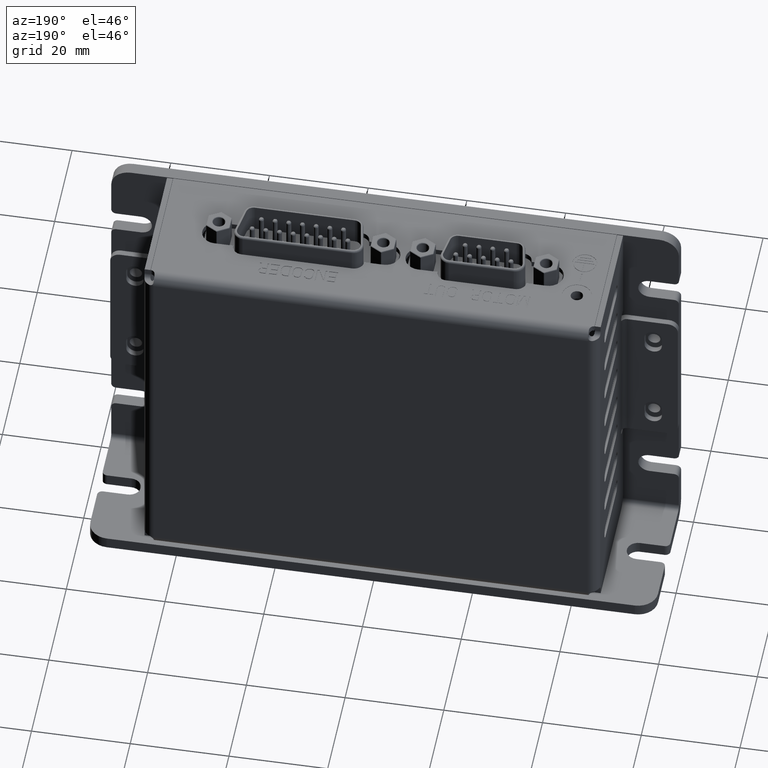
[diagram: clean part render]
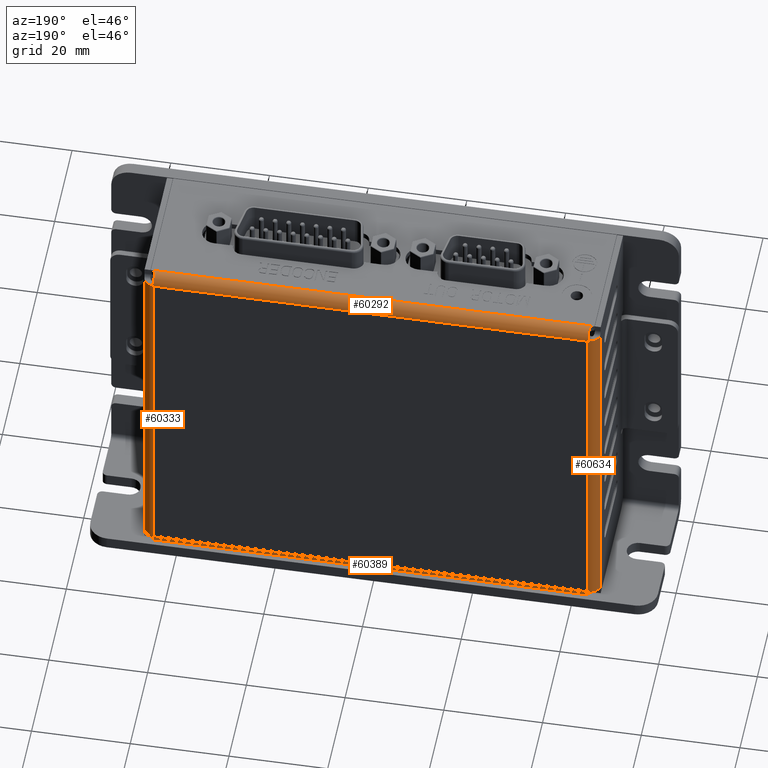
[diagram: same view with one multi-face feature highlighted, each face labeled with its STEP entity id]
A machine part, auxiliary view. The highlighted faces form ONE feature: a constant-radius fillet chain: 4 tangent blend faces with common blend radius 2.2 mm. The faces share edges in the B-rep.
Their STEP definitions:
[1] entity #60389 (Cylinder):
#50807=CARTESIAN_POINT('',(4.429289321881E1,3.629289321881E1,
-1.958408500280E-2));
#50817=CARTESIAN_POINT('',(4.429289321881E1,3.629289321881E1,
-1.958408500280E-2));
#50818=CARTESIAN_POINT('',(4.426114708571E1,3.632463935192E1,
-2.384851320025E-2));
#50819=CARTESIAN_POINT('',(4.420245057301E1,3.639192209824E1,
-3.430853054572E-2));
#50820=CARTESIAN_POINT('',(4.412997190537E1,3.650130382970E1,
-5.682870278468E-2));
#50821=CARTESIAN_POINT('',(4.407282944610E1,3.661794715526E1,
-8.733525997267E-2));
#50822=CARTESIAN_POINT('',(4.403123581322E1,3.674096645089E1,
-1.271114053402E-1));
#50823=CARTESIAN_POINT('',(4.400582953504E1,3.686842159490E1,
-1.770145892175E-1));
#50824=CARTESIAN_POINT('',(4.4E1,3.695604145619E1,-2.179757053205E-1));
#50825=CARTESIAN_POINT('',(4.4E1,3.7E1,-2.404082057735E-1));
#50842=DIRECTION('',(1.E0,0.E0,4.120792200851E-14));
#50843=VECTOR('',#50842,8.990000000011E1);
#50844=CARTESIAN_POINT('',(-4.495000000006E1,3.82E1,-2.200000000002E0));
#50845=LINE('',#50844,#50843);
#50846=CARTESIAN_POINT('',(4.4E1,3.6E1,-2.2E0));
#50847=DIRECTION('',(1.E0,0.E0,0.E0));
#50848=DIRECTION('',(0.E0,8.910134447234E-1,4.539769171689E-1));
#50849=AXIS2_PLACEMENT_3D('',#50846,#50847,#50848);
#50851=CARTESIAN_POINT('',(4.4E1,3.6E1,0.E0));
#50852=CARTESIAN_POINT('',(4.403259219789E1,3.603259219789E1,0.E0));
#50853=CARTESIAN_POINT('',(4.409777656852E1,3.609777656852E1,
-1.448284514502E-3));
#50854=CARTESIAN_POINT('',(4.419545656701E1,3.619545656701E1,
-7.969867581123E-3));
#50855=CARTESIAN_POINT('',(4.426044697523E1,3.626044697523E1,
-1.522561162353E-2));
#50856=CARTESIAN_POINT('',(4.429289321881E1,3.629289321881E1,
-1.958408500280E-2));
#50858=DIRECTION('',(1.E0,0.E0,0.E0));
#50859=VECTOR('',#50858,8.8E1);
#50860=CARTESIAN_POINT('',(-4.4E1,3.6E1,0.E0));
#50861=LINE('',#50860,#50859);
#50862=CARTESIAN_POINT('',(-4.4E1,3.7E1,-2.404082057735E-1));
#50863=CARTESIAN_POINT('',(-4.4E1,3.695590125552E1,-2.179041594664E-1));
#50864=CARTESIAN_POINT('',(-4.400582994208E1,3.686848625535E1,
-1.770477391540E-1));
#50865=CARTESIAN_POINT('',(-4.403123438856E1,3.674095044034E1,
-1.271026993436E-1));
#50866=CARTESIAN_POINT('',(-4.407283473768E1,3.661794653704E1,
-8.733693402243E-2));
#50867=CARTESIAN_POINT('',(-4.412995216373E1,3.650132231313E1,
-5.683071258222E-2));
#50868=CARTESIAN_POINT('',(-4.420252424799E1,3.639184878275E1,
-3.429881730577E-2));
#50869=CARTESIAN_POINT('',(-4.426098833851E1,3.632479809911E1,
-2.386983756175E-2));
#50870=CARTESIAN_POINT('',(-4.429289321881E1,3.629289321881E1,
-1.958408500280E-2));
#50872=CARTESIAN_POINT('',(-4.4E1,3.6E1,-2.2E0));
#50873=DIRECTION('',(1.E0,0.E0,0.E0));
#50874=DIRECTION('',(0.E0,8.910134447233E-1,4.539769171690E-1));
#50875=AXIS2_PLACEMENT_3D('',#50872,#50873,#50874);
#51005=CARTESIAN_POINT('',(-4.495000000006E1,3.82E1,-2.200000000002E0));
#51006=CARTESIAN_POINT('',(-4.490670319148E1,3.82E1,-2.197832448446E0));
#51007=CARTESIAN_POINT('',(-4.482020325185E1,3.820000461741E1,
-2.187864616724E0));
#51008=CARTESIAN_POINT('',(-4.469242169708E1,3.819967760892E1,
-2.155811977427E0));
#51009=CARTESIAN_POINT('',(-4.457052219749E1,3.819828384453E1,
-2.107426824897E0));
#51010=CARTESIAN_POINT('',(-4.445810412675E1,3.819489467703E1,
-2.044948838551E0));
#51011=CARTESIAN_POINT('',(-4.435450197289E1,3.818832840281E1,
-1.968629673401E0));
#51012=CARTESIAN_POINT('',(-4.426140613694E1,3.817722570062E1,
-1.879467657143E0));
#51013=CARTESIAN_POINT('',(-4.418158711372E1,3.816045429947E1,
-1.780406513787E0));
#51014=CARTESIAN_POINT('',(-4.411700419331E1,3.813757319855E1,
-1.675793267334E0));
#51015=CARTESIAN_POINT('',(-4.406631595747E1,3.810783623188E1,
-1.566194785963E0));
#51016=CARTESIAN_POINT('',(-4.402833744681E1,3.806895499539E1,
-1.448369603773E0));
#51017=CARTESIAN_POINT('',(-4.400513634446E1,3.802022400115E1,
-1.325489523715E0));
#51018=CARTESIAN_POINT('',(-4.4E1,3.798132628856E1,-1.242656967627E0));
#51019=CARTESIAN_POINT('',(-4.4E1,3.796022957839E1,-1.201250782228E0));
#51089=CARTESIAN_POINT('',(-4.4E1,3.6E1,0.E0));
#51090=CARTESIAN_POINT('',(-4.403259219789E1,3.603259219789E1,0.E0));
#51091=CARTESIAN_POINT('',(-4.409777656852E1,3.609777656852E1,
-1.448284514503E-3));
#51092=CARTESIAN_POINT('',(-4.419545656701E1,3.619545656701E1,
-7.969867581123E-3));
#51093=CARTESIAN_POINT('',(-4.426044697523E1,3.626044697523E1,
-1.522561162353E-2));
#51094=CARTESIAN_POINT('',(-4.429289321881E1,3.629289321881E1,
-1.958408500280E-2));
#53559=CARTESIAN_POINT('',(4.4E1,3.796022957839E1,-1.201250782228E0));
#53560=CARTESIAN_POINT('',(4.4E1,3.798132628856E1,-1.242656967631E0));
#53561=CARTESIAN_POINT('',(4.400513634446E1,3.802022400115E1,
-1.325489523726E0));
#53562=CARTESIAN_POINT('',(4.402833744681E1,3.806895499540E1,
-1.448369603794E0));
#53563=CARTESIAN_POINT('',(4.406631595749E1,3.810783623189E1,
-1.566194785992E0));
#53564=CARTESIAN_POINT('',(4.411700419333E1,3.813757319856E1,
-1.675793267371E0));
#53565=CARTESIAN_POINT('',(4.418158711376E1,3.816045429948E1,
-1.780406513830E0));
#53566=CARTESIAN_POINT('',(4.426140613699E1,3.817722570063E1,
-1.879467657191E0));
#53567=CARTESIAN_POINT('',(4.435450197296E1,3.818832840281E1,
-1.968629673449E0));
#53568=CARTESIAN_POINT('',(4.445810412683E1,3.819489467703E1,
-2.044948838597E0));
#53569=CARTESIAN_POINT('',(4.457052219759E1,3.819828384453E1,
-2.107426824938E0));
#53570=CARTESIAN_POINT('',(4.469242169719E1,3.819967760892E1,
-2.155811977457E0));
#53571=CARTESIAN_POINT('',(4.482020325198E1,3.820000461741E1,
-2.187864616746E0));
#53572=CARTESIAN_POINT('',(4.490670319163E1,3.82E1,-2.197832448443E0));
#53573=CARTESIAN_POINT('',(4.495000000006E1,3.82E1,-2.199999999998E0));
#56915=VERTEX_POINT('',#53559);
#56916=VERTEX_POINT('',#53573);
#56919=VERTEX_POINT('',#51005);
#56920=VERTEX_POINT('',#51019);
#56922=VERTEX_POINT('',#50807);
#56923=VERTEX_POINT('',#50862);
#56924=VERTEX_POINT('',#50870);
#56925=CARTESIAN_POINT('',(4.4E1,3.6E1,0.E0));
#56927=VERTEX_POINT('',#56925);
#56945=CARTESIAN_POINT('',(-4.4E1,3.6E1,0.E0));
#56946=VERTEX_POINT('',#56945);
#56955=VERTEX_POINT('',#50825);
#60365=CARTESIAN_POINT('',(-4.4E1,3.6E1,-2.2E0));
#60366=DIRECTION('',(1.E0,0.E0,0.E0));
#60367=DIRECTION('',(0.E0,1.E0,0.E0));
#60368=AXIS2_PLACEMENT_3D('',#60365,#60366,#60367);
#60369=CYLINDRICAL_SURFACE('',#60368,2.2E0);
#60371=ORIENTED_EDGE('',*,*,#60370,.T.);
#60373=ORIENTED_EDGE('',*,*,#60372,.F.);
#60375=ORIENTED_EDGE('',*,*,#60374,.T.);
#60376=ORIENTED_EDGE('',*,*,#60353,.F.);
#60377=ORIENTED_EDGE('',*,*,#60327,.F.);
#60378=ORIENTED_EDGE('',*,*,#60303,.F.);
#60380=ORIENTED_EDGE('',*,*,#60379,.T.);
#60382=ORIENTED_EDGE('',*,*,#60381,.F.);
#60384=ORIENTED_EDGE('',*,*,#60383,.F.);
#60386=ORIENTED_EDGE('',*,*,#60385,.F.);
#60387=EDGE_LOOP('',(#60371,#60373,#60375,#60376,#60377,#60378,#60380,#60382,
#60384,#60386));
#60388=FACE_OUTER_BOUND('',#60387,.F.);
#60389=ADVANCED_FACE('',(#60388),#60369,.T.);
#50826=B_SPLINE_CURVE_WITH_KNOTS('',3,(#50817,#50818,#50819,#50820,#50821,
#50822,#50823,#50824,#50825),.UNSPECIFIED.,.F.,.F.,(4,1,1,1,1,1,4),(0.E0,
1.666666666667E-1,3.333333333333E-1,5.E-1,6.666666666667E-1,8.333333333333E-1,
1.E0),.UNSPECIFIED.);
#50850=CIRCLE('',#50849,2.2E0);
#50857=B_SPLINE_CURVE_WITH_KNOTS('',3,(#50851,#50852,#50853,#50854,#50855,
#50856),.UNSPECIFIED.,.F.,.F.,(4,1,1,4),(0.E0,3.333333333333E-1,
6.666666666667E-1,1.E0),.UNSPECIFIED.);
#50871=B_SPLINE_CURVE_WITH_KNOTS('',3,(#50862,#50863,#50864,#50865,#50866,
#50867,#50868,#50869,#50870),.UNSPECIFIED.,.F.,.F.,(4,1,1,1,1,1,4),(0.E0,
1.666666666667E-1,3.333333333333E-1,5.E-1,6.666666666667E-1,8.333333333333E-1,
1.E0),.UNSPECIFIED.);
#50876=CIRCLE('',#50875,2.2E0);
#51020=B_SPLINE_CURVE_WITH_KNOTS('',3,(#51005,#51006,#51007,#51008,#51009,
#51010,#51011,#51012,#51013,#51014,#51015,#51016,#51017,#51018,#51019),
.UNSPECIFIED.,.F.,.F.,(4,1,1,1,1,1,1,1,1,1,1,1,4),(0.E0,8.333333333333E-2,
1.666666666667E-1,2.5E-1,3.333333333333E-1,4.166666666667E-1,5.E-1,
5.833333333333E-1,6.666666666667E-1,7.5E-1,8.333333333333E-1,9.166666666667E-1,
1.E0),.UNSPECIFIED.);
#51095=B_SPLINE_CURVE_WITH_KNOTS('',3,(#51089,#51090,#51091,#51092,#51093,
#51094),.UNSPECIFIED.,.F.,.F.,(4,1,1,4),(0.E0,3.333333333333E-1,
6.666666666667E-1,1.E0),.UNSPECIFIED.);
#53574=B_SPLINE_CURVE_WITH_KNOTS('',3,(#53559,#53560,#53561,#53562,#53563,
#53564,#53565,#53566,#53567,#53568,#53569,#53570,#53571,#53572,#53573),
.UNSPECIFIED.,.F.,.F.,(4,1,1,1,1,1,1,1,1,1,1,1,4),(0.E0,8.333333333333E-2,
1.666666666667E-1,2.5E-1,3.333333333333E-1,4.166666666667E-1,5.E-1,
5.833333333333E-1,6.666666666667E-1,7.5E-1,8.333333333333E-1,9.166666666667E-1,
1.E0),.UNSPECIFIED.);
#60303=EDGE_CURVE('',#56946,#56927,#50861,.T.);
#60327=EDGE_CURVE('',#56927,#56922,#50857,.T.);
#60353=EDGE_CURVE('',#56922,#56955,#50826,.T.);
#60370=EDGE_CURVE('',#56919,#56916,#50845,.T.);
#60372=EDGE_CURVE('',#56915,#56916,#53574,.T.);
#60374=EDGE_CURVE('',#56915,#56955,#50850,.T.);
#60379=EDGE_CURVE('',#56946,#56924,#51095,.T.);
#60381=EDGE_CURVE('',#56923,#56924,#50871,.T.);
#60383=EDGE_CURVE('',#56920,#56923,#50876,.T.);
#60385=EDGE_CURVE('',#56919,#56920,#51020,.T.);
[2] entity #60634 (Cylinder):
#50767=CARTESIAN_POINT('',(-4.4E1,-3.6E1,0.E0));
#50768=CARTESIAN_POINT('',(-4.403259219789E1,-3.603259219789E1,0.E0));
#50769=CARTESIAN_POINT('',(-4.409777656852E1,-3.609777656852E1,
-1.448284514502E-3));
#50770=CARTESIAN_POINT('',(-4.419545656701E1,-3.619545656701E1,
-7.969867581123E-3));
#50771=CARTESIAN_POINT('',(-4.426044697523E1,-3.626044697523E1,
-1.522561162353E-2));
#50772=CARTESIAN_POINT('',(-4.429289321881E1,-3.629289321881E1,
-1.958408500280E-2));
#50870=CARTESIAN_POINT('',(-4.429289321881E1,3.629289321881E1,
-1.958408500280E-2));
#51050=CARTESIAN_POINT('',(-4.429289321881E1,3.629289321881E1,
-1.958408500280E-2));
#51051=CARTESIAN_POINT('',(-4.432463935192E1,3.626114708571E1,
-2.384851320025E-2));
#51052=CARTESIAN_POINT('',(-4.439192209824E1,3.620245057301E1,
-3.430853054571E-2));
#51053=CARTESIAN_POINT('',(-4.450130382970E1,3.612997190537E1,
-5.682870278468E-2));
#51054=CARTESIAN_POINT('',(-4.461794715526E1,3.607282944610E1,
-8.733525997267E-2));
#51055=CARTESIAN_POINT('',(-4.474096645089E1,3.603123581322E1,
-1.271114053402E-1));
#51056=CARTESIAN_POINT('',(-4.486842159490E1,3.600582953504E1,
-1.770145892175E-1));
#51057=CARTESIAN_POINT('',(-4.495604145619E1,3.6E1,-2.179757053205E-1));
#51058=CARTESIAN_POINT('',(-4.5E1,3.6E1,-2.404082057735E-1));
#51075=CARTESIAN_POINT('',(-4.4E1,-3.6E1,-2.2E0));
#51076=DIRECTION('',(0.E0,1.E0,0.E0));
#51077=DIRECTION('',(-8.907235428302E-1,0.E0,4.545454545455E-1));
#51078=AXIS2_PLACEMENT_3D('',#51075,#51076,#51077);
#51080=DIRECTION('',(0.E0,1.E0,0.E0));
#51081=VECTOR('',#51080,7.399971800832E1);
#51082=CARTESIAN_POINT('',(-4.620000001314E1,-3.699985900416E1,
-2.199999973494E0));
#51083=LINE('',#51082,#51081);
#51084=CARTESIAN_POINT('',(-4.4E1,3.6E1,-2.2E0));
#51085=DIRECTION('',(0.E0,1.E0,0.E0));
#51086=DIRECTION('',(-8.907235428302E-1,0.E0,4.545454545455E-1));
#51087=AXIS2_PLACEMENT_3D('',#51084,#51085,#51086);
#51089=CARTESIAN_POINT('',(-4.4E1,3.6E1,0.E0));
#51090=CARTESIAN_POINT('',(-4.403259219789E1,3.603259219789E1,0.E0));
#51091=CARTESIAN_POINT('',(-4.409777656852E1,3.609777656852E1,
-1.448284514503E-3));
#51092=CARTESIAN_POINT('',(-4.419545656701E1,3.619545656701E1,
-7.969867581123E-3));
#51093=CARTESIAN_POINT('',(-4.426044697523E1,3.626044697523E1,
-1.522561162353E-2));
#51094=CARTESIAN_POINT('',(-4.429289321881E1,3.629289321881E1,
-1.958408500280E-2));
#51096=DIRECTION('',(0.E0,1.E0,0.E0));
#51097=VECTOR('',#51096,7.2E1);
#51098=CARTESIAN_POINT('',(-4.4E1,-3.6E1,0.E0));
#51099=LINE('',#51098,#51097);
#51100=CARTESIAN_POINT('',(-4.5E1,-3.6E1,-2.404082057735E-1));
#51101=CARTESIAN_POINT('',(-4.495590125552E1,-3.6E1,-2.179041594664E-1));
#51102=CARTESIAN_POINT('',(-4.486848625535E1,-3.600582994208E1,
-1.770477391539E-1));
#51103=CARTESIAN_POINT('',(-4.474095044034E1,-3.603123438856E1,
-1.271026993436E-1));
#51104=CARTESIAN_POINT('',(-4.461794653704E1,-3.607283473768E1,
-8.733693402243E-2));
#51105=CARTESIAN_POINT('',(-4.450132231313E1,-3.612995216373E1,
-5.683071258222E-2));
#51106=CARTESIAN_POINT('',(-4.439184878275E1,-3.620252424799E1,
-3.429881730577E-2));
#51107=CARTESIAN_POINT('',(-4.432479809911E1,-3.626098833851E1,
-2.386983756175E-2));
#51108=CARTESIAN_POINT('',(-4.429289321881E1,-3.629289321881E1,
-1.958408500280E-2));
#51608=CARTESIAN_POINT('',(-4.595959179423E1,3.6E1,-1.2E0));
#51609=CARTESIAN_POINT('',(-4.598138620585E1,3.6E1,-1.242708150179E0));
#51610=CARTESIAN_POINT('',(-4.602146028425E1,3.600546442209E1,
-1.328136489802E0));
#51611=CARTESIAN_POINT('',(-4.607132776378E1,3.603013464886E1,
-1.454724652471E0));
#51612=CARTESIAN_POINT('',(-4.611074267180E1,3.607045590968E1,
-1.575762003151E0));
#51613=CARTESIAN_POINT('',(-4.614056516052E1,3.612417370332E1,
-1.687972818528E0));
#51614=CARTESIAN_POINT('',(-4.616326416173E1,3.619278596704E1,
-1.794971657142E0));
#51615=CARTESIAN_POINT('',(-4.617955757444E1,3.627751024410E1,
-1.895623217646E0));
#51616=CARTESIAN_POINT('',(-4.619002992500E1,3.637618072055E1,
-1.985350052828E0));
#51617=CARTESIAN_POINT('',(-4.619595287857E1,3.648562868260E1,
-2.060970240959E0));
#51618=CARTESIAN_POINT('',(-4.619880846606E1,3.660393678349E1,
-2.121478413658E0));
#51619=CARTESIAN_POINT('',(-4.619984370909E1,3.673183397500E1,
-2.166581812049E0));
#51620=CARTESIAN_POINT('',(-4.620001239579E1,3.686520180145E1,
-2.193950639007E0));
#51621=CARTESIAN_POINT('',(-4.620000001314E1,3.695495025013E1,
-2.199999973494E0));
#51622=CARTESIAN_POINT('',(-4.620000001314E1,3.699985900416E1,
-2.199999973494E0));
#51881=CARTESIAN_POINT('',(-4.620000001314E1,-3.699985900416E1,
-2.199999973494E0));
#51882=CARTESIAN_POINT('',(-4.620000001314E1,-3.695495025013E1,
-2.199999973494E0));
#51883=CARTESIAN_POINT('',(-4.620001239579E1,-3.686520180145E1,
-2.193950639007E0));
#51884=CARTESIAN_POINT('',(-4.619984370909E1,-3.673183397500E1,
-2.166581812049E0));
#51885=CARTESIAN_POINT('',(-4.619880846606E1,-3.660393678350E1,
-2.121478413658E0));
#51886=CARTESIAN_POINT('',(-4.619595287857E1,-3.648562868260E1,
-2.060970240959E0));
#51887=CARTESIAN_POINT('',(-4.619002992500E1,-3.637618072055E1,
-1.985350052829E0));
#51888=CARTESIAN_POINT('',(-4.617955757444E1,-3.627751024410E1,
-1.895623217646E0));
#51889=CARTESIAN_POINT('',(-4.616326416173E1,-3.619278596704E1,
-1.794971657142E0));
#51890=CARTESIAN_POINT('',(-4.614056516052E1,-3.612417370332E1,
-1.687972818528E0));
#51891=CARTESIAN_POINT('',(-4.611074267180E1,-3.607045590968E1,
-1.575762003151E0));
#51892=CARTESIAN_POINT('',(-4.607132776378E1,-3.603013464886E1,
-1.454724652471E0));
#51893=CARTESIAN_POINT('',(-4.602146028425E1,-3.600546442209E1,
-1.328136489802E0));
#51894=CARTESIAN_POINT('',(-4.598138620585E1,-3.6E1,-1.242708150179E0));
#51895=CARTESIAN_POINT('',(-4.595959179423E1,-3.6E1,-1.2E0));
#56917=VERTEX_POINT('',#51608);
#56918=VERTEX_POINT('',#51622);
#56924=VERTEX_POINT('',#50870);
#56937=CARTESIAN_POINT('',(-4.4E1,-3.6E1,0.E0));
#56938=VERTEX_POINT('',#56937);
#56945=CARTESIAN_POINT('',(-4.4E1,3.6E1,0.E0));
#56946=VERTEX_POINT('',#56945);
#56954=VERTEX_POINT('',#50772);
#56958=VERTEX_POINT('',#51058);
#56959=VERTEX_POINT('',#51881);
#56960=VERTEX_POINT('',#51895);
#58183=CARTESIAN_POINT('',(-4.5E1,-3.6E1,-2.404082057735E-1));
#58185=VERTEX_POINT('',#58183);
#60611=CARTESIAN_POINT('',(-4.4E1,-3.6E1,-2.2E0));
#60612=DIRECTION('',(0.E0,1.E0,0.E0));
#60613=DIRECTION('',(-1.E0,0.E0,0.E0));
#60614=AXIS2_PLACEMENT_3D('',#60611,#60612,#60613);
#60615=CYLINDRICAL_SURFACE('',#60614,2.2E0);
#60617=ORIENTED_EDGE('',*,*,#60616,.F.);
#60619=ORIENTED_EDGE('',*,*,#60618,.F.);
#60621=ORIENTED_EDGE('',*,*,#60620,.T.);
#60623=ORIENTED_EDGE('',*,*,#60622,.F.);
#60625=ORIENTED_EDGE('',*,*,#60624,.T.);
#60626=ORIENTED_EDGE('',*,*,#60600,.F.);
#60627=ORIENTED_EDGE('',*,*,#60379,.F.);
#60628=ORIENTED_EDGE('',*,*,#60301,.F.);
#60629=ORIENTED_EDGE('',*,*,#60288,.T.);
#60631=ORIENTED_EDGE('',*,*,#60630,.F.);
#60632=EDGE_LOOP('',(#60617,#60619,#60621,#60623,#60625,#60626,#60627,#60628,
#60629,#60631));
#60633=FACE_OUTER_BOUND('',#60632,.F.);
#60634=ADVANCED_FACE('',(#60633),#60615,.T.);
#50773=B_SPLINE_CURVE_WITH_KNOTS('',3,(#50767,#50768,#50769,#50770,#50771,
#50772),.UNSPECIFIED.,.F.,.F.,(4,1,1,4),(0.E0,3.333333333333E-1,
6.666666666667E-1,1.E0),.UNSPECIFIED.);
#51059=B_SPLINE_CURVE_WITH_KNOTS('',3,(#51050,#51051,#51052,#51053,#51054,
#51055,#51056,#51057,#51058),.UNSPECIFIED.,.F.,.F.,(4,1,1,1,1,1,4),(0.E0,
1.666666666667E-1,3.333333333333E-1,5.E-1,6.666666666667E-1,8.333333333333E-1,
1.E0),.UNSPECIFIED.);
#51079=CIRCLE('',#51078,2.2E0);
#51088=CIRCLE('',#51087,2.2E0);
#51095=B_SPLINE_CURVE_WITH_KNOTS('',3,(#51089,#51090,#51091,#51092,#51093,
#51094),.UNSPECIFIED.,.F.,.F.,(4,1,1,4),(0.E0,3.333333333333E-1,
6.666666666667E-1,1.E0),.UNSPECIFIED.);
#51109=B_SPLINE_CURVE_WITH_KNOTS('',3,(#51100,#51101,#51102,#51103,#51104,
#51105,#51106,#51107,#51108),.UNSPECIFIED.,.F.,.F.,(4,1,1,1,1,1,4),(0.E0,
1.666666666667E-1,3.333333333333E-1,5.E-1,6.666666666667E-1,8.333333333333E-1,
1.E0),.UNSPECIFIED.);
#51623=B_SPLINE_CURVE_WITH_KNOTS('',3,(#51608,#51609,#51610,#51611,#51612,
#51613,#51614,#51615,#51616,#51617,#51618,#51619,#51620,#51621,#51622),
.UNSPECIFIED.,.F.,.F.,(4,1,1,1,1,1,1,1,1,1,1,1,4),(0.E0,8.333333333333E-2,
1.666666666667E-1,2.5E-1,3.333333333333E-1,4.166666666667E-1,5.E-1,
5.833333333333E-1,6.666666666667E-1,7.5E-1,8.333333333333E-1,9.166666666667E-1,
1.E0),.UNSPECIFIED.);
#51896=B_SPLINE_CURVE_WITH_KNOTS('',3,(#51881,#51882,#51883,#51884,#51885,
#51886,#51887,#51888,#51889,#51890,#51891,#51892,#51893,#51894,#51895),
.UNSPECIFIED.,.F.,.F.,(4,1,1,1,1,1,1,1,1,1,1,1,4),(0.E0,8.333333333333E-2,
1.666666666667E-1,2.5E-1,3.333333333333E-1,4.166666666667E-1,5.E-1,
5.833333333333E-1,6.666666666667E-1,7.5E-1,8.333333333333E-1,9.166666666667E-1,
1.E0),.UNSPECIFIED.);
#60288=EDGE_CURVE('',#56938,#56954,#50773,.T.);
#60301=EDGE_CURVE('',#56938,#56946,#51099,.T.);
#60379=EDGE_CURVE('',#56946,#56924,#51095,.T.);
#60600=EDGE_CURVE('',#56924,#56958,#51059,.T.);
#60616=EDGE_CURVE('',#56960,#58185,#51079,.T.);
#60618=EDGE_CURVE('',#56959,#56960,#51896,.T.);
#60620=EDGE_CURVE('',#56959,#56918,#51083,.T.);
#60622=EDGE_CURVE('',#56917,#56918,#51623,.T.);
#60624=EDGE_CURVE('',#56917,#56958,#51088,.T.);
#60630=EDGE_CURVE('',#58185,#56954,#51109,.T.);
[3] entity #60292 (Cylinder):
#50739=DIRECTION('',(-1.E0,0.E0,0.E0));
#50740=VECTOR('',#50739,8.8E1);
#50741=CARTESIAN_POINT('',(4.4E1,-3.6E1,0.E0));
#50742=LINE('',#50741,#50740);
#50743=CARTESIAN_POINT('',(4.4E1,-3.7E1,-2.404082057735E-1));
#50744=CARTESIAN_POINT('',(4.4E1,-3.695590125552E1,-2.179041594664E-1));
#50745=CARTESIAN_POINT('',(4.400582994208E1,-3.686848625535E1,
-1.770477391539E-1));
#50746=CARTESIAN_POINT('',(4.403123438856E1,-3.674095044034E1,
-1.271026993436E-1));
#50747=CARTESIAN_POINT('',(4.407283473768E1,-3.661794653704E1,
-8.733693402243E-2));
#50748=CARTESIAN_POINT('',(4.412995216373E1,-3.650132231313E1,
-5.683071258222E-2));
#50749=CARTESIAN_POINT('',(4.420252424799E1,-3.639184878275E1,
-3.429881730577E-2));
#50750=CARTESIAN_POINT('',(4.426098833851E1,-3.632479809911E1,
-2.386983756175E-2));
#50751=CARTESIAN_POINT('',(4.429289321881E1,-3.629289321881E1,
-1.958408500280E-2));
#50753=CARTESIAN_POINT('',(4.4E1,-3.6E1,-2.2E0));
#50754=DIRECTION('',(-1.E0,0.E0,0.E0));
#50755=DIRECTION('',(0.E0,-8.910134447233E-1,4.539769171690E-1));
#50756=AXIS2_PLACEMENT_3D('',#50753,#50754,#50755);
#50758=DIRECTION('',(-1.E0,0.E0,-9.380705333776E-14));
#50759=VECTOR('',#50758,8.989999999987E1);
#50760=CARTESIAN_POINT('',(4.494999999993E1,-3.82E1,-2.199999999996E0));
#50761=LINE('',#50760,#50759);
#50762=CARTESIAN_POINT('',(-4.4E1,-3.6E1,-2.2E0));
#50763=DIRECTION('',(-1.E0,0.E0,0.E0));
#50764=DIRECTION('',(0.E0,-8.910134447232E-1,4.539769171692E-1));
#50765=AXIS2_PLACEMENT_3D('',#50762,#50763,#50764);
#50767=CARTESIAN_POINT('',(-4.4E1,-3.6E1,0.E0));
#50768=CARTESIAN_POINT('',(-4.403259219789E1,-3.603259219789E1,0.E0));
#50769=CARTESIAN_POINT('',(-4.409777656852E1,-3.609777656852E1,
-1.448284514502E-3));
#50770=CARTESIAN_POINT('',(-4.419545656701E1,-3.619545656701E1,
-7.969867581123E-3));
#50771=CARTESIAN_POINT('',(-4.426044697523E1,-3.626044697523E1,
-1.522561162353E-2));
#50772=CARTESIAN_POINT('',(-4.429289321881E1,-3.629289321881E1,
-1.958408500280E-2));
#50788=CARTESIAN_POINT('',(4.4E1,-3.6E1,0.E0));
#50789=CARTESIAN_POINT('',(4.403259219789E1,-3.603259219789E1,0.E0));
#50790=CARTESIAN_POINT('',(4.409777656852E1,-3.609777656852E1,
-1.448284514502E-3));
#50791=CARTESIAN_POINT('',(4.419545656701E1,-3.619545656701E1,
-7.969867581124E-3));
#50792=CARTESIAN_POINT('',(4.426044697523E1,-3.626044697523E1,
-1.522561162353E-2));
#50793=CARTESIAN_POINT('',(4.429289321881E1,-3.629289321881E1,
-1.958408500280E-2));
#51118=CARTESIAN_POINT('',(-4.429289321881E1,-3.629289321881E1,
-1.958408500280E-2));
#51119=CARTESIAN_POINT('',(-4.426114708571E1,-3.632463935192E1,
-2.384851320025E-2));
#51120=CARTESIAN_POINT('',(-4.420245057301E1,-3.639192209824E1,
-3.430853054572E-2));
#51121=CARTESIAN_POINT('',(-4.412997190537E1,-3.650130382970E1,
-5.682870278467E-2));
#51122=CARTESIAN_POINT('',(-4.407282944610E1,-3.661794715526E1,
-8.733525997267E-2));
#51123=CARTESIAN_POINT('',(-4.403123581322E1,-3.674096645089E1,
-1.271114053402E-1));
#51124=CARTESIAN_POINT('',(-4.400582953504E1,-3.686842159490E1,
-1.770145892175E-1));
#51125=CARTESIAN_POINT('',(-4.4E1,-3.695604145619E1,-2.179757053204E-1));
#51126=CARTESIAN_POINT('',(-4.4E1,-3.7E1,-2.404082057735E-1));
#51151=CARTESIAN_POINT('',(-4.4E1,-3.796022957839E1,-1.201250782228E0));
#51152=CARTESIAN_POINT('',(-4.4E1,-3.798132628855E1,-1.242656967619E0));
#51153=CARTESIAN_POINT('',(-4.400513634446E1,-3.802022400114E1,
-1.325489523690E0));
#51154=CARTESIAN_POINT('',(-4.402833744679E1,-3.806895499537E1,
-1.448369603724E0));
#51155=CARTESIAN_POINT('',(-4.406631595744E1,-3.810783623186E1,
-1.566194785894E0));
#51156=CARTESIAN_POINT('',(-4.411700419326E1,-3.813757319853E1,
-1.675793267251E0));
#51157=CARTESIAN_POINT('',(-4.418158711364E1,-3.816045429945E1,
-1.780406513687E0));
#51158=CARTESIAN_POINT('',(-4.426140613683E1,-3.817722570060E1,
-1.879467657033E0));
#51159=CARTESIAN_POINT('',(-4.435450197274E1,-3.818832840279E1,
-1.968629673290E0));
#51160=CARTESIAN_POINT('',(-4.445810412656E1,-3.819489467702E1,
-2.044948838447E0));
#51161=CARTESIAN_POINT('',(-4.457052219726E1,-3.819828384452E1,
-2.107426824806E0));
#51162=CARTESIAN_POINT('',(-4.469242169682E1,-3.819967760891E1,
-2.155811977357E0));
#51163=CARTESIAN_POINT('',(-4.482020325148E1,-3.820000461741E1,
-2.187864616681E0));
#51164=CARTESIAN_POINT('',(-4.490670319128E1,-3.82E1,-2.197832448438E0));
#51165=CARTESIAN_POINT('',(-4.494999999993E1,-3.82E1,-2.200000000004E0));
#51203=CARTESIAN_POINT('',(4.494999999993E1,-3.82E1,-2.199999999996E0));
#51204=CARTESIAN_POINT('',(4.490670319160E1,-3.82E1,-2.197832448431E0));
#51205=CARTESIAN_POINT('',(4.482020325179E1,-3.820000461741E1,
-2.187864616731E0));
#51206=CARTESIAN_POINT('',(4.469242169709E1,-3.819967760892E1,
-2.155811977425E0));
#51207=CARTESIAN_POINT('',(4.457052219749E1,-3.819828384453E1,
-2.107426824898E0));
#51208=CARTESIAN_POINT('',(4.445810412675E1,-3.819489467703E1,
-2.044948838551E0));
#51209=CARTESIAN_POINT('',(4.435450197289E1,-3.818832840281E1,
-1.968629673401E0));
#51210=CARTESIAN_POINT('',(4.426140613694E1,-3.817722570062E1,
-1.879467657142E0));
#51211=CARTESIAN_POINT('',(4.418158711372E1,-3.816045429947E1,
-1.780406513786E0));
#51212=CARTESIAN_POINT('',(4.411700419331E1,-3.813757319855E1,
-1.675793267334E0));
#51213=CARTESIAN_POINT('',(4.406631595747E1,-3.810783623188E1,
-1.566194785963E0));
#51214=CARTESIAN_POINT('',(4.402833744681E1,-3.806895499539E1,
-1.448369603774E0));
#51215=CARTESIAN_POINT('',(4.400513634446E1,-3.802022400115E1,
-1.325489523715E0));
#51216=CARTESIAN_POINT('',(4.4E1,-3.798132628856E1,-1.242656967627E0));
#51217=CARTESIAN_POINT('',(4.4E1,-3.796022957839E1,-1.201250782228E0));
#56926=CARTESIAN_POINT('',(4.4E1,-3.6E1,0.E0));
#56928=VERTEX_POINT('',#56926);
#56933=CARTESIAN_POINT('',(4.494999999993E1,-3.82E1,-2.199999999996E0));
#56934=VERTEX_POINT('',#56933);
#56937=CARTESIAN_POINT('',(-4.4E1,-3.6E1,0.E0));
#56938=VERTEX_POINT('',#56937);
#56941=CARTESIAN_POINT('',(-4.494999999993E1,-3.82E1,-2.200000000004E0));
#56942=VERTEX_POINT('',#56941);
#56953=VERTEX_POINT('',#50793);
#56954=VERTEX_POINT('',#50772);
#56956=VERTEX_POINT('',#50743);
#56961=VERTEX_POINT('',#51151);
#56964=VERTEX_POINT('',#51217);
#57026=VERTEX_POINT('',#51126);
#60266=CARTESIAN_POINT('',(4.4E1,-3.6E1,-2.2E0));
#60267=DIRECTION('',(-1.E0,0.E0,0.E0));
#60268=DIRECTION('',(0.E0,-1.E0,0.E0));
#60269=AXIS2_PLACEMENT_3D('',#60266,#60267,#60268);
#60270=CYLINDRICAL_SURFACE('',#60269,2.2E0);
#60272=ORIENTED_EDGE('',*,*,#60271,.F.);
#60274=ORIENTED_EDGE('',*,*,#60273,.T.);
#60276=ORIENTED_EDGE('',*,*,#60275,.F.);
#60278=ORIENTED_EDGE('',*,*,#60277,.F.);
#60280=ORIENTED_EDGE('',*,*,#60279,.F.);
#60281=ORIENTED_EDGE('',*,*,#59272,.T.);
#60283=ORIENTED_EDGE('',*,*,#60282,.F.);
#60285=ORIENTED_EDGE('',*,*,#60284,.T.);
#60287=ORIENTED_EDGE('',*,*,#60286,.F.);
#60289=ORIENTED_EDGE('',*,*,#60288,.F.);
#60290=EDGE_LOOP('',(#60272,#60274,#60276,#60278,#60280,#60281,#60283,#60285,
#60287,#60289));
#60291=FACE_OUTER_BOUND('',#60290,.F.);
#60292=ADVANCED_FACE('',(#60291),#60270,.T.);
#50752=B_SPLINE_CURVE_WITH_KNOTS('',3,(#50743,#50744,#50745,#50746,#50747,
#50748,#50749,#50750,#50751),.UNSPECIFIED.,.F.,.F.,(4,1,1,1,1,1,4),(0.E0,
1.666666666667E-1,3.333333333333E-1,5.E-1,6.666666666667E-1,8.333333333333E-1,
1.E0),.UNSPECIFIED.);
#50757=CIRCLE('',#50756,2.2E0);
#50766=CIRCLE('',#50765,2.2E0);
#50773=B_SPLINE_CURVE_WITH_KNOTS('',3,(#50767,#50768,#50769,#50770,#50771,
#50772),.UNSPECIFIED.,.F.,.F.,(4,1,1,4),(0.E0,3.333333333333E-1,
6.666666666667E-1,1.E0),.UNSPECIFIED.);
#50794=B_SPLINE_CURVE_WITH_KNOTS('',3,(#50788,#50789,#50790,#50791,#50792,
#50793),.UNSPECIFIED.,.F.,.F.,(4,1,1,4),(0.E0,3.333333333333E-1,
6.666666666667E-1,1.E0),.UNSPECIFIED.);
#51127=B_SPLINE_CURVE_WITH_KNOTS('',3,(#51118,#51119,#51120,#51121,#51122,
#51123,#51124,#51125,#51126),.UNSPECIFIED.,.F.,.F.,(4,1,1,1,1,1,4),(0.E0,
1.666666666667E-1,3.333333333333E-1,5.E-1,6.666666666667E-1,8.333333333333E-1,
1.E0),.UNSPECIFIED.);
#51166=B_SPLINE_CURVE_WITH_KNOTS('',3,(#51151,#51152,#51153,#51154,#51155,
#51156,#51157,#51158,#51159,#51160,#51161,#51162,#51163,#51164,#51165),
.UNSPECIFIED.,.F.,.F.,(4,1,1,1,1,1,1,1,1,1,1,1,4),(0.E0,8.333333333333E-2,
1.666666666667E-1,2.5E-1,3.333333333333E-1,4.166666666667E-1,5.E-1,
5.833333333333E-1,6.666666666667E-1,7.5E-1,8.333333333333E-1,9.166666666667E-1,
1.E0),.UNSPECIFIED.);
#51218=B_SPLINE_CURVE_WITH_KNOTS('',3,(#51203,#51204,#51205,#51206,#51207,
#51208,#51209,#51210,#51211,#51212,#51213,#51214,#51215,#51216,#51217),
.UNSPECIFIED.,.F.,.F.,(4,1,1,1,1,1,1,1,1,1,1,1,4),(0.E0,8.333333333333E-2,
1.666666666667E-1,2.5E-1,3.333333333333E-1,4.166666666667E-1,5.E-1,
5.833333333333E-1,6.666666666667E-1,7.5E-1,8.333333333333E-1,9.166666666667E-1,
1.E0),.UNSPECIFIED.);
#59272=EDGE_CURVE('',#56934,#56942,#50761,.T.);
#60271=EDGE_CURVE('',#56928,#56938,#50742,.T.);
#60273=EDGE_CURVE('',#56928,#56953,#50794,.T.);
#60275=EDGE_CURVE('',#56956,#56953,#50752,.T.);
#60277=EDGE_CURVE('',#56964,#56956,#50757,.T.);
#60279=EDGE_CURVE('',#56934,#56964,#51218,.T.);
#60282=EDGE_CURVE('',#56961,#56942,#51166,.T.);
#60284=EDGE_CURVE('',#56961,#57026,#50766,.T.);
#60286=EDGE_CURVE('',#56954,#57026,#51127,.T.);
#60288=EDGE_CURVE('',#56938,#56954,#50773,.T.);
[4] entity #60333 (Cylinder):
#50774=CARTESIAN_POINT('',(4.4E1,3.6E1,-2.2E0));
#50775=DIRECTION('',(0.E0,-1.E0,0.E0));
#50776=DIRECTION('',(8.907235428302E-1,0.E0,4.545454545455E-1));
#50777=AXIS2_PLACEMENT_3D('',#50774,#50775,#50776);
#50779=DIRECTION('',(0.E0,-1.E0,0.E0));
#50780=VECTOR('',#50779,7.399971800832E1);
#50781=CARTESIAN_POINT('',(4.620000001314E1,3.699985900416E1,
-2.199999973494E0));
#50782=LINE('',#50781,#50780);
#50783=CARTESIAN_POINT('',(4.4E1,-3.6E1,-2.2E0));
#50784=DIRECTION('',(0.E0,-1.E0,0.E0));
#50785=DIRECTION('',(8.907235428302E-1,0.E0,4.545454545455E-1));
#50786=AXIS2_PLACEMENT_3D('',#50783,#50784,#50785);
#50788=CARTESIAN_POINT('',(4.4E1,-3.6E1,0.E0));
#50789=CARTESIAN_POINT('',(4.403259219789E1,-3.603259219789E1,0.E0));
#50790=CARTESIAN_POINT('',(4.409777656852E1,-3.609777656852E1,
-1.448284514502E-3));
#50791=CARTESIAN_POINT('',(4.419545656701E1,-3.619545656701E1,
-7.969867581124E-3));
#50792=CARTESIAN_POINT('',(4.426044697523E1,-3.626044697523E1,
-1.522561162353E-2));
#50793=CARTESIAN_POINT('',(4.429289321881E1,-3.629289321881E1,
-1.958408500280E-2));
#50795=DIRECTION('',(0.E0,-1.E0,0.E0));
#50796=VECTOR('',#50795,7.2E1);
#50797=CARTESIAN_POINT('',(4.4E1,3.6E1,0.E0));
#50798=LINE('',#50797,#50796);
#50799=CARTESIAN_POINT('',(4.5E1,3.6E1,-2.404082057735E-1));
#50800=CARTESIAN_POINT('',(4.495590125552E1,3.6E1,-2.179041594664E-1));
#50801=CARTESIAN_POINT('',(4.486848625535E1,3.600582994208E1,
-1.770477391539E-1));
#50802=CARTESIAN_POINT('',(4.474095044034E1,3.603123438856E1,
-1.271026993436E-1));
#50803=CARTESIAN_POINT('',(4.461794653704E1,3.607283473768E1,
-8.733693402243E-2));
#50804=CARTESIAN_POINT('',(4.450132231313E1,3.612995216373E1,
-5.683071258222E-2));
#50805=CARTESIAN_POINT('',(4.439184878275E1,3.620252424799E1,
-3.429881730577E-2));
#50806=CARTESIAN_POINT('',(4.432479809911E1,3.626098833851E1,
-2.386983756175E-2));
#50807=CARTESIAN_POINT('',(4.429289321881E1,3.629289321881E1,
-1.958408500280E-2));
#50851=CARTESIAN_POINT('',(4.4E1,3.6E1,0.E0));
#50852=CARTESIAN_POINT('',(4.403259219789E1,3.603259219789E1,0.E0));
#50853=CARTESIAN_POINT('',(4.409777656852E1,3.609777656852E1,
-1.448284514502E-3));
#50854=CARTESIAN_POINT('',(4.419545656701E1,3.619545656701E1,
-7.969867581123E-3));
#50855=CARTESIAN_POINT('',(4.426044697523E1,3.626044697523E1,
-1.522561162353E-2));
#50856=CARTESIAN_POINT('',(4.429289321881E1,3.629289321881E1,
-1.958408500280E-2));
#51242=CARTESIAN_POINT('',(4.429289321881E1,-3.629289321881E1,
-1.958408500280E-2));
#51243=CARTESIAN_POINT('',(4.432463935192E1,-3.626114708571E1,
-2.384851320025E-2));
#51244=CARTESIAN_POINT('',(4.439192209824E1,-3.620245057301E1,
-3.430853054571E-2));
#51245=CARTESIAN_POINT('',(4.450130382970E1,-3.612997190537E1,
-5.682870278468E-2));
#51246=CARTESIAN_POINT('',(4.461794715526E1,-3.607282944610E1,
-8.733525997267E-2));
#51247=CARTESIAN_POINT('',(4.474096645089E1,-3.603123581322E1,
-1.271114053402E-1));
#51248=CARTESIAN_POINT('',(4.486842159490E1,-3.600582953504E1,
-1.770145892175E-1));
#51249=CARTESIAN_POINT('',(4.495604145619E1,-3.6E1,-2.179757053204E-1));
#51250=CARTESIAN_POINT('',(4.5E1,-3.6E1,-2.404082057735E-1));
#51281=CARTESIAN_POINT('',(4.595959179423E1,-3.6E1,-1.2E0));
#51282=CARTESIAN_POINT('',(4.598138620585E1,-3.6E1,-1.242708150179E0));
#51283=CARTESIAN_POINT('',(4.602146028425E1,-3.600546442209E1,
-1.328136489802E0));
#51284=CARTESIAN_POINT('',(4.607132776378E1,-3.603013464886E1,
-1.454724652471E0));
#51285=CARTESIAN_POINT('',(4.611074267180E1,-3.607045590968E1,
-1.575762003151E0));
#51286=CARTESIAN_POINT('',(4.614056516052E1,-3.612417370332E1,
-1.687972818528E0));
#51287=CARTESIAN_POINT('',(4.616326416173E1,-3.619278596704E1,
-1.794971657142E0));
#51288=CARTESIAN_POINT('',(4.617955757444E1,-3.627751024410E1,
-1.895623217646E0));
#51289=CARTESIAN_POINT('',(4.619002992500E1,-3.637618072055E1,
-1.985350052828E0));
#51290=CARTESIAN_POINT('',(4.619595287857E1,-3.648562868260E1,
-2.060970240959E0));
#51291=CARTESIAN_POINT('',(4.619880846606E1,-3.660393678349E1,
-2.121478413658E0));
#51292=CARTESIAN_POINT('',(4.619984370909E1,-3.673183397500E1,
-2.166581812049E0));
#51293=CARTESIAN_POINT('',(4.620001239579E1,-3.686520180145E1,
-2.193950639007E0));
#51294=CARTESIAN_POINT('',(4.620000001314E1,-3.695495025013E1,
-2.199999973494E0));
#51295=CARTESIAN_POINT('',(4.620000001314E1,-3.699985900416E1,
-2.199999973494E0));
#51542=CARTESIAN_POINT('',(4.620000001314E1,3.699985900416E1,
-2.199999973494E0));
#51543=CARTESIAN_POINT('',(4.620000001314E1,3.695495025013E1,
-2.199999973494E0));
#51544=CARTESIAN_POINT('',(4.620001239579E1,3.686520180145E1,
-2.193950639007E0));
#51545=CARTESIAN_POINT('',(4.619984370909E1,3.673183397500E1,
-2.166581812049E0));
#51546=CARTESIAN_POINT('',(4.619880846606E1,3.660393678350E1,
-2.121478413658E0));
#51547=CARTESIAN_POINT('',(4.619595287857E1,3.648562868260E1,
-2.060970240959E0));
#51548=CARTESIAN_POINT('',(4.619002992500E1,3.637618072055E1,
-1.985350052829E0));
#51549=CARTESIAN_POINT('',(4.617955757444E1,3.627751024410E1,
-1.895623217646E0));
#51550=CARTESIAN_POINT('',(4.616326416173E1,3.619278596704E1,
-1.794971657142E0));
#51551=CARTESIAN_POINT('',(4.614056516052E1,3.612417370332E1,
-1.687972818528E0));
#51552=CARTESIAN_POINT('',(4.611074267180E1,3.607045590968E1,
-1.575762003151E0));
#51553=CARTESIAN_POINT('',(4.607132776378E1,3.603013464886E1,
-1.454724652471E0));
#51554=CARTESIAN_POINT('',(4.602146028425E1,3.600546442209E1,
-1.328136489802E0));
#51555=CARTESIAN_POINT('',(4.598138620585E1,3.6E1,-1.242708150179E0));
#51556=CARTESIAN_POINT('',(4.595959179423E1,3.6E1,-1.2E0));
#56921=VERTEX_POINT('',#50799);
#56922=VERTEX_POINT('',#50807);
#56925=CARTESIAN_POINT('',(4.4E1,3.6E1,0.E0));
#56926=CARTESIAN_POINT('',(4.4E1,-3.6E1,0.E0));
#56927=VERTEX_POINT('',#56925);
#56928=VERTEX_POINT('',#56926);
#56953=VERTEX_POINT('',#50793);
#56957=VERTEX_POINT('',#51250);
#56962=VERTEX_POINT('',#51281);
#56963=VERTEX_POINT('',#51295);
#56965=VERTEX_POINT('',#51542);
#56966=VERTEX_POINT('',#51556);
#60308=CARTESIAN_POINT('',(4.4E1,3.6E1,-2.2E0));
#60309=DIRECTION('',(0.E0,-1.E0,0.E0));
#60310=DIRECTION('',(1.E0,0.E0,0.E0));
#60311=AXIS2_PLACEMENT_3D('',#60308,#60309,#60310);
#60312=CYLINDRICAL_SURFACE('',#60311,2.2E0);
#60314=ORIENTED_EDGE('',*,*,#60313,.F.);
#60316=ORIENTED_EDGE('',*,*,#60315,.F.);
#60318=ORIENTED_EDGE('',*,*,#60317,.T.);
#60320=ORIENTED_EDGE('',*,*,#60319,.F.);
#60322=ORIENTED_EDGE('',*,*,#60321,.T.);
#60324=ORIENTED_EDGE('',*,*,#60323,.F.);
#60325=ORIENTED_EDGE('',*,*,#60273,.F.);
#60326=ORIENTED_EDGE('',*,*,#60298,.F.);
#60328=ORIENTED_EDGE('',*,*,#60327,.T.);
#60330=ORIENTED_EDGE('',*,*,#60329,.F.);
#60331=EDGE_LOOP('',(#60314,#60316,#60318,#60320,#60322,#60324,#60325,#60326,
#60328,#60330));
#60332=FACE_OUTER_BOUND('',#60331,.F.);
#60333=ADVANCED_FACE('',(#60332),#60312,.T.);
#50778=CIRCLE('',#50777,2.2E0);
#50787=CIRCLE('',#50786,2.2E0);
#50794=B_SPLINE_CURVE_WITH_KNOTS('',3,(#50788,#50789,#50790,#50791,#50792,
#50793),.UNSPECIFIED.,.F.,.F.,(4,1,1,4),(0.E0,3.333333333333E-1,
6.666666666667E-1,1.E0),.UNSPECIFIED.);
#50808=B_SPLINE_CURVE_WITH_KNOTS('',3,(#50799,#50800,#50801,#50802,#50803,
#50804,#50805,#50806,#50807),.UNSPECIFIED.,.F.,.F.,(4,1,1,1,1,1,4),(0.E0,
1.666666666667E-1,3.333333333333E-1,5.E-1,6.666666666667E-1,8.333333333333E-1,
1.E0),.UNSPECIFIED.);
#50857=B_SPLINE_CURVE_WITH_KNOTS('',3,(#50851,#50852,#50853,#50854,#50855,
#50856),.UNSPECIFIED.,.F.,.F.,(4,1,1,4),(0.E0,3.333333333333E-1,
6.666666666667E-1,1.E0),.UNSPECIFIED.);
#51251=B_SPLINE_CURVE_WITH_KNOTS('',3,(#51242,#51243,#51244,#51245,#51246,
#51247,#51248,#51249,#51250),.UNSPECIFIED.,.F.,.F.,(4,1,1,1,1,1,4),(0.E0,
1.666666666667E-1,3.333333333333E-1,5.E-1,6.666666666667E-1,8.333333333333E-1,
1.E0),.UNSPECIFIED.);
#51296=B_SPLINE_CURVE_WITH_KNOTS('',3,(#51281,#51282,#51283,#51284,#51285,
#51286,#51287,#51288,#51289,#51290,#51291,#51292,#51293,#51294,#51295),
.UNSPECIFIED.,.F.,.F.,(4,1,1,1,1,1,1,1,1,1,1,1,4),(0.E0,8.333333333333E-2,
1.666666666667E-1,2.5E-1,3.333333333333E-1,4.166666666667E-1,5.E-1,
5.833333333333E-1,6.666666666667E-1,7.5E-1,8.333333333333E-1,9.166666666667E-1,
1.E0),.UNSPECIFIED.);
#51557=B_SPLINE_CURVE_WITH_KNOTS('',3,(#51542,#51543,#51544,#51545,#51546,
#51547,#51548,#51549,#51550,#51551,#51552,#51553,#51554,#51555,#51556),
.UNSPECIFIED.,.F.,.F.,(4,1,1,1,1,1,1,1,1,1,1,1,4),(0.E0,8.333333333333E-2,
1.666666666667E-1,2.5E-1,3.333333333333E-1,4.166666666667E-1,5.E-1,
5.833333333333E-1,6.666666666667E-1,7.5E-1,8.333333333333E-1,9.166666666667E-1,
1.E0),.UNSPECIFIED.);
#60273=EDGE_CURVE('',#56928,#56953,#50794,.T.);
#60298=EDGE_CURVE('',#56927,#56928,#50798,.T.);
#60313=EDGE_CURVE('',#56966,#56921,#50778,.T.);
#60315=EDGE_CURVE('',#56965,#56966,#51557,.T.);
#60317=EDGE_CURVE('',#56965,#56963,#50782,.T.);
#60319=EDGE_CURVE('',#56962,#56963,#51296,.T.);
#60321=EDGE_CURVE('',#56962,#56957,#50787,.T.);
#60323=EDGE_CURVE('',#56953,#56957,#51251,.T.);
#60327=EDGE_CURVE('',#56927,#56922,#50857,.T.);
#60329=EDGE_CURVE('',#56921,#56922,#50808,.T.);